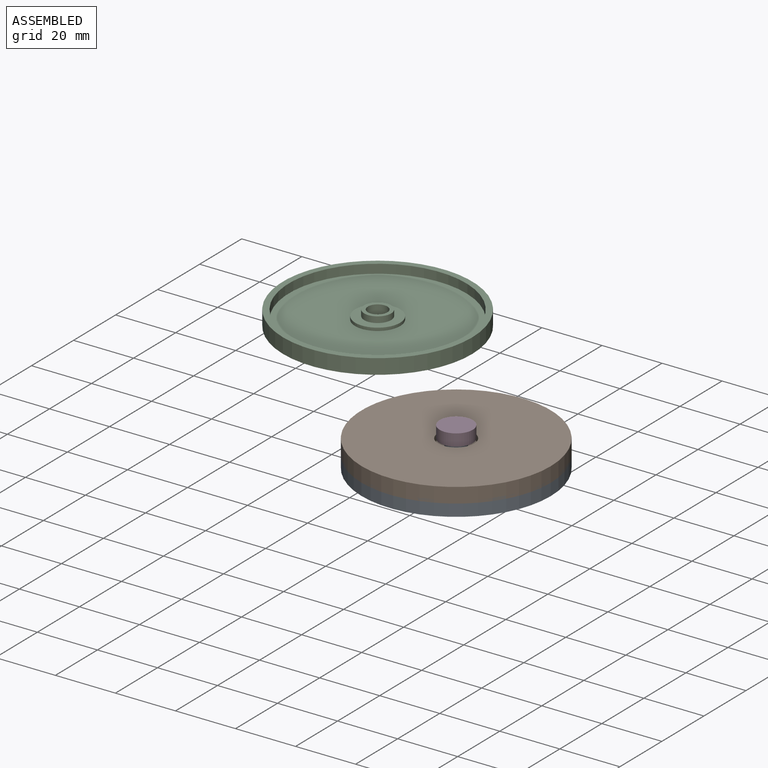
[diagram: assembled view]
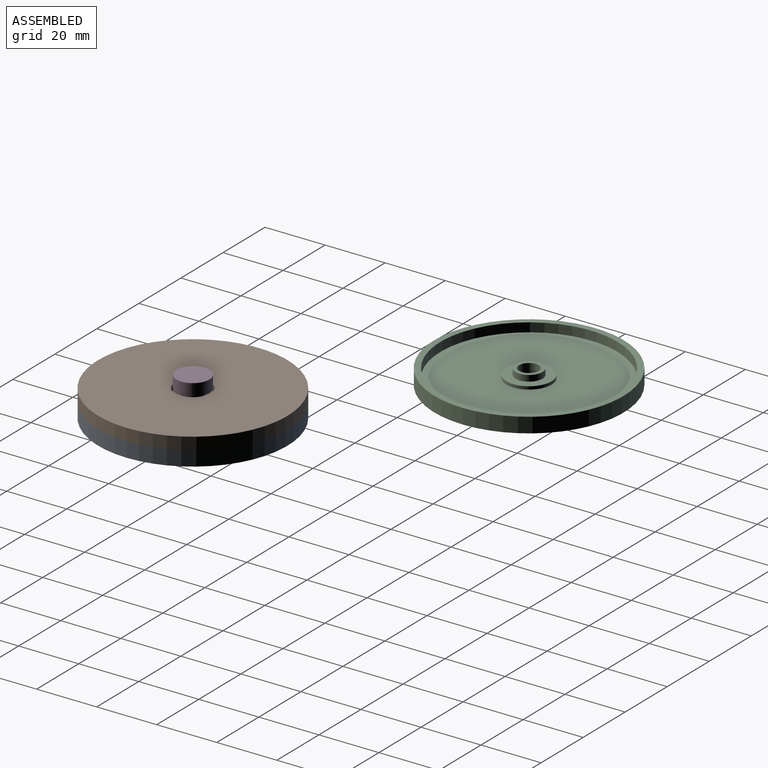
[diagram: assembled view, second angle]
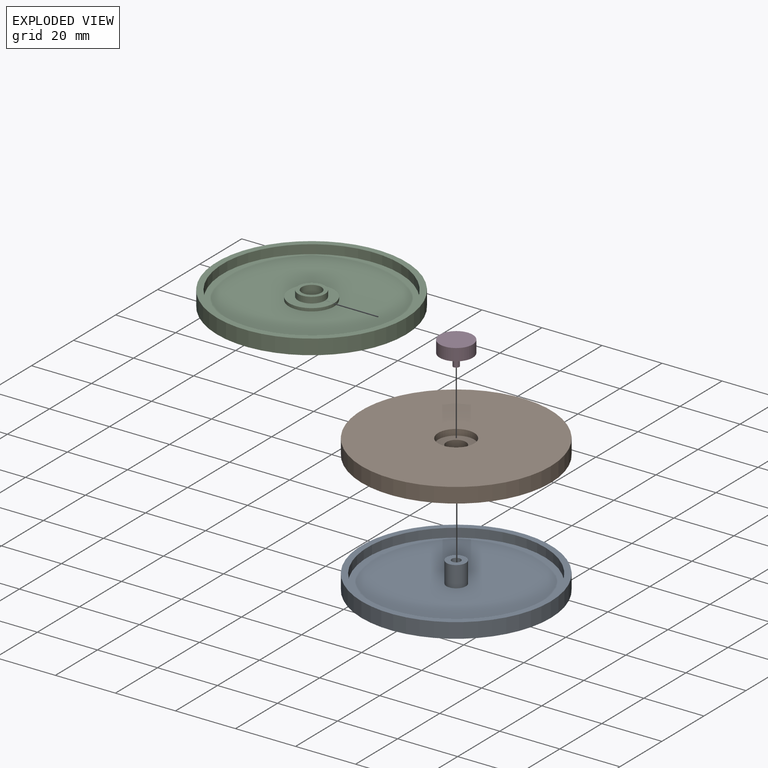
[diagram: exploded view]
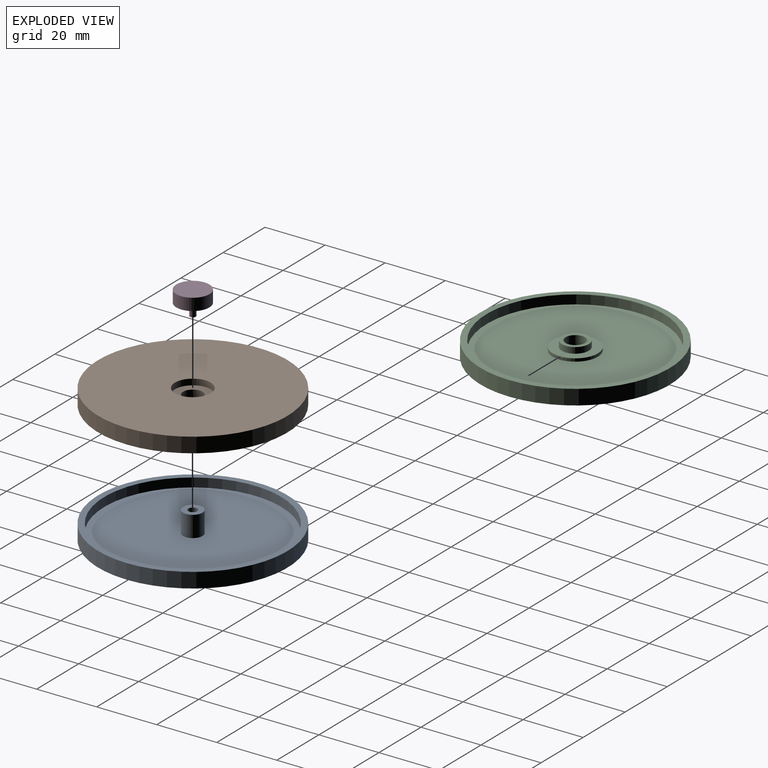
[diagram: exploded view, second angle]
ASSEMBLY  parts=3 mates=2
PART A: 9 faces, bbox 63x63x9 mm
  f0: plane 59x59mm, normal (0,0,1), area 2701.3mm2, adj f1,f3
  f1: cylinder r=3.23mm len=7mm, axis (0,0,-1), area 141.8mm2, adj f0,f2
  f2: plane 6.45x6.45mm, normal (0,0,1), area 25.6mm2, adj f1,f7
  f3: cylinder r=29.5mm len=59mm, axis (0,0,-1), area 556.1mm2, adj f0,f4
  f4: plane 63x63mm, normal (0,0,1), area 383.3mm2, adj f3,f6
  f5: plane 63x63mm, normal (0,0,-1), area 3117.2mm2, adj f6
  f6: cylinder r=31.5mm len=63mm, axis (0,0,-1), area 989.6mm2, adj f4,f5
  f7: cylinder r=1.5mm len=8mm, axis (0,0,1), area 75.4mm2, adj f2,f8
  f8: plane 3x3mm, normal (0,0,1), area 7.1mm2, adj f7
PART B: 12 faces, bbox 63x63x5 mm
  f0: cylinder r=3.25mm len=6.5mm, axis (0,0,1), area 61.3mm2, adj f9,f11
  f1: cylinder r=31.5mm len=63mm, axis (0,0,-1), area 989.6mm2, adj f2,f4
  f2: plane 63x63mm, normal (0,0,-1), area 3004.1mm2, adj f1,f10
  f3: cylinder r=29.5mm len=59mm, axis (0,0,-1), area 556.1mm2, adj f4,f5
  f4: plane 63x63mm, normal (0,0,1), area 383.3mm2, adj f1,f3
  f5: plane 59x59mm, normal (0,0,1), area 2557.3mm2, adj f3,f6
  f6: cylinder r=7.5mm len=15mm, axis (0,0,-1), area 47.1mm2, adj f5,f7
  f7: plane 15x15mm, normal (0,0,1), area 113.1mm2, adj f6,f8
  f8: cylinder r=4.5mm len=9mm, axis (0,0,-1), area 56.5mm2, adj f7,f9
  f9: plane 9x9mm, normal (0,0,1), area 30.4mm2, adj f0,f8
  f10: cylinder r=6mm len=12mm, axis (0,0,-1), area 75.4mm2, adj f2,f11
  f11: plane 12x12mm, normal (0,0,-1), area 79.9mm2, adj f0,f10
PART C: 5 faces, bbox 11x11x8 mm
  f0: cylinder r=5.5mm len=11mm, axis (0,0,-1), area 138.2mm2, adj f1,f2
  f1: plane 11x11mm, normal (0,0,1), area 91.9mm2, adj f0,f3
  f2: plane 11x11mm, normal (0,0,-1), area 95mm2, adj f0
  f3: cylinder r=1mm len=4mm, axis (0,0,-1), area 25.1mm2, adj f1,f4
  f4: plane 2x2mm, normal (0,0,1), area 3.1mm2, adj f3
PLACE A t=(1.4,3,0)mm
PLACE B rot(axis=(1,0,0),180deg) t=(70.18,68.84,9)mm
PLACE C rot(axis=(1,0,0),180deg) t=(-57.46,27.16,13)mm
MATE cylindrical B.f0 <-> A.f1  axis (0,0,1) through (1.4,3,9)mm
MATE fastened C.f0 <-> A.f1  axis (0,0,-1) through (1.4,3,9)mm
